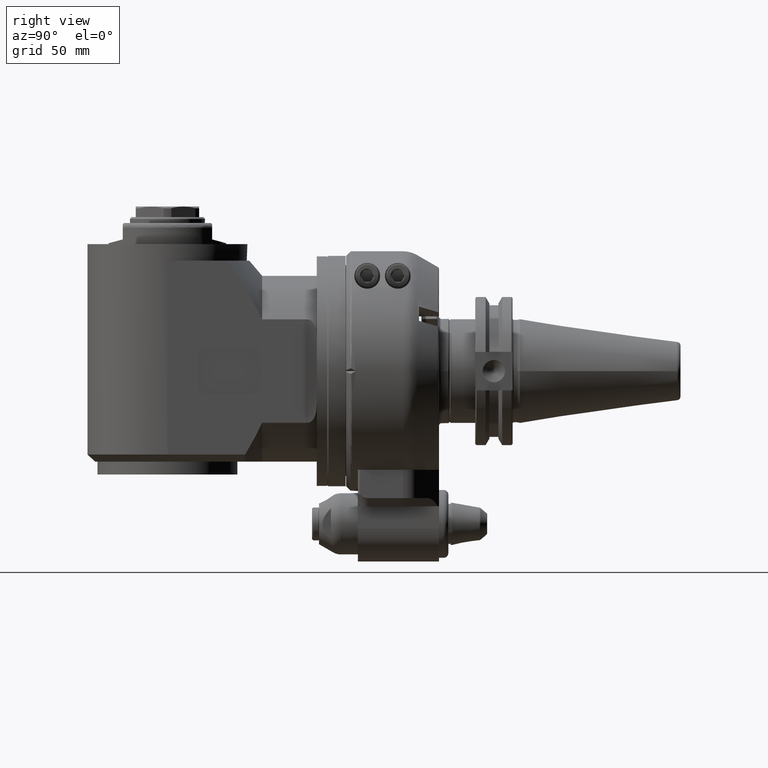
[diagram: clean part render]
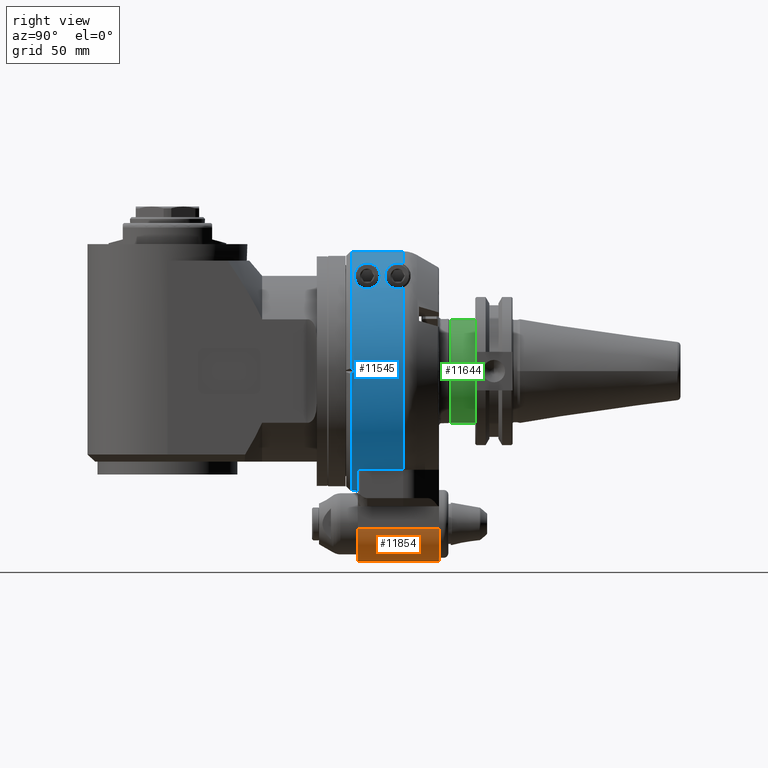
[diagram: same view with three faces highlighted in distinct colors, each labeled with its STEP entity id]
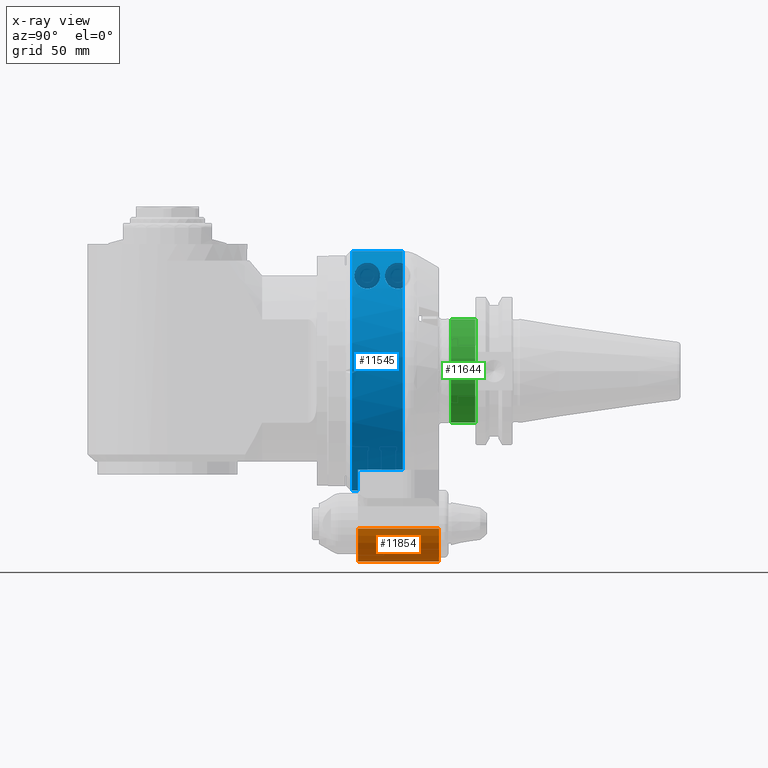
[diagram: x-ray of the same camera — body ghosted, the three highlighted faces saturated]
A machine part, right view with three faces highlighted in distinct colors.
The next image is the same camera in x-ray (body ghosted, the three faces saturated) — at least one of them is partly hidden behind the body in this view.
Their STEP definitions:

[orange] entity #11854 — the highlighted cylindrical surface (edge-blend (fillet) strip) has radius 14 mm, axis along (-0, 1, -0).
#1063=LINE('',#20450,#1837);
#1064=LINE('',#20460,#1838);
#1837=VECTOR('',#15936,34.5);
#1838=VECTOR('',#15947,34.5);
#2228=CYLINDRICAL_SURFACE('',#13104,14.);
#2882=FACE_OUTER_BOUND('',#3693,.T.);
#3693=EDGE_LOOP('',(#9771,#9772,#9773,#9774));
#4443=CIRCLE('',#13049,14.);
#4451=CIRCLE('',#13069,14.);
#5435=VERTEX_POINT('',#20235);
#5436=VERTEX_POINT('',#20237);
#5462=VERTEX_POINT('',#20337);
#5463=VERTEX_POINT('',#20339);
#6906=EDGE_CURVE('',#5435,#5436,#4443,.T.);
#6946=EDGE_CURVE('',#5462,#5463,#4451,.T.);
#6993=EDGE_CURVE('',#5462,#5436,#1063,.T.);
#6997=EDGE_CURVE('',#5435,#5463,#1064,.T.);
#9771=ORIENTED_EDGE('',*,*,#6997,.T.);
#9772=ORIENTED_EDGE('',*,*,#6946,.F.);
#9773=ORIENTED_EDGE('',*,*,#6993,.T.);
#9774=ORIENTED_EDGE('',*,*,#6906,.F.);
#11854=ADVANCED_FACE('',(#2882),#2228,.T.);
#13049=AXIS2_PLACEMENT_3D('',#20238,#15780,#15781);
#13069=AXIS2_PLACEMENT_3D('',#20340,#15847,#15848);
#13104=AXIS2_PLACEMENT_3D('',#20459,#15945,#15946);
#15780=DIRECTION('center_axis',(0.,-1.,0.));
#15781=DIRECTION('ref_axis',(0.,0.,-1.));
#15847=DIRECTION('center_axis',(0.,1.,0.));
#15848=DIRECTION('ref_axis',(1.,0.,0.));
#15936=DIRECTION('',(0.,-1.,0.));
#15945=DIRECTION('center_axis',(0.,1.,0.));
#15946=DIRECTION('ref_axis',(0.,0.,1.));
#15947=DIRECTION('',(0.,1.,0.));
#20235=CARTESIAN_POINT('',(1.,5.,-81.));
#20237=CARTESIAN_POINT('',(15.,5.,-67.));
#20238=CARTESIAN_POINT('Origin',(1.,5.,-67.));
#20337=CARTESIAN_POINT('',(15.,39.5,-67.));
#20339=CARTESIAN_POINT('',(1.,39.5,-81.));
#20340=CARTESIAN_POINT('Origin',(1.,39.5,-67.));
#20450=CARTESIAN_POINT('',(15.,39.5,-67.));
#20459=CARTESIAN_POINT('Origin',(1.,31.,-67.));
#20460=CARTESIAN_POINT('',(1.,5.,-81.));

[blue] entity #11545 — the highlighted cylindrical surface (partial cylindrical patch) has radius 51 mm, axis along (0, -1, 0).
#162=ELLIPSE('',#12497,144.249783362042,51.);
#163=ELLIPSE('',#12498,144.249783362042,51.);
#199=B_SPLINE_CURVE_WITH_KNOTS('',3,(#18393,#18394,#18395,#18396,#18397,
#18398),.UNSPECIFIED.,.F.,.F.,(4,2,4),(-0.220144328873587,-0.201175489980687,
0.),.UNSPECIFIED.);
#200=B_SPLINE_CURVE_WITH_KNOTS('',3,(#18399,#18400,#18401,#18402,#18403,
#18404,#18405,#18406,#18407,#18408,#18409,#18410,#18411,#18412,#18413,#18414,
#18415,#18416,#18417,#18418,#18419,#18420,#18421,#18422,#18423,#18424),
 .UNSPECIFIED.,.F.,.F.,(4,2,2,2,2,2,2,2,2,2,2,2,4),(0.,0.201175489980687,
0.402350979961374,0.726790310303929,1.05122964064648,1.44743687444551,1.84364410824453,
2.06341028648597,2.1732933756067,2.28317646472742,2.39305955384814,2.50294264296886,
2.52975105249028),.UNSPECIFIED.);
#201=B_SPLINE_CURVE_WITH_KNOTS('',3,(#18428,#18429,#18430,#18431,#18432,
#18433,#18434,#18435,#18436,#18437,#18438,#18439,#18440,#18441,#18442,#18443,
#18444,#18445,#18446,#18447,#18448,#18449,#18450),.UNSPECIFIED.,.F.,.F.,
(4,2,2,2,2,3,2,2,2,2,4),(-1.23194682408093,-0.835739590281912,-0.439532356482891,
-0.219766178241446,-0.109883089120723,0.,0.0949450193758139,0.189890038751628,
0.520032016318137,0.865269466584616,1.2105069168511),.UNSPECIFIED.);
#202=B_SPLINE_CURVE_WITH_KNOTS('',3,(#18451,#18452,#18453,#18454,#18455,
#18456,#18457,#18458,#18459,#18460,#18461,#18462,#18463,#18464,#18465,#18466,
#18467,#18468),.UNSPECIFIED.,.F.,.F.,(4,2,2,2,2,2,2,2,4),(1.2105069168511,
1.53494624719365,1.8593855775362,2.06056106751689,2.26173655749758,2.46291204747827,
2.66408753745895,2.98852686780151,3.31296619814406),.UNSPECIFIED.);
#675=LINE('',#18162,#1449);
#677=LINE('',#18166,#1451);
#694=LINE('',#18389,#1468);
#695=LINE('',#18425,#1469);
#1449=VECTOR('',#14240,19.16025403784);
#1451=VECTOR('',#14242,19.16025403784);
#1468=VECTOR('',#14367,21.74606325158);
#1469=VECTOR('',#14372,21.74606856517);
#2150=CYLINDRICAL_SURFACE('',#12495,51.);
#2341=FACE_BOUND('',#3334,.T.);
#2573=FACE_OUTER_BOUND('',#3333,.T.);
#3333=EDGE_LOOP('',(#8235,#8236,#8237,#8238,#8239,#8240,#8241,#8242,#8243,
#8244,#8245,#8246,#8247,#8248));
#3334=EDGE_LOOP('',(#8249,#8250));
#4181=CIRCLE('',#12493,51.);
#4182=CIRCLE('',#12494,51.);
#4183=CIRCLE('',#12496,51.);
#4184=CIRCLE('',#12499,51.);
#4185=CIRCLE('',#12500,51.);
#4186=CIRCLE('',#12501,51.);
#4938=VERTEX_POINT('',#18148);
#4939=VERTEX_POINT('',#18161);
#4940=VERTEX_POINT('',#18163);
#4941=VERTEX_POINT('',#18165);
#4984=VERTEX_POINT('',#18345);
#4985=VERTEX_POINT('',#18354);
#4986=VERTEX_POINT('',#18356);
#4987=VERTEX_POINT('',#18379);
#4988=VERTEX_POINT('',#18380);
#4989=VERTEX_POINT('',#18382);
#4990=VERTEX_POINT('',#18384);
#4991=VERTEX_POINT('',#18386);
#4992=VERTEX_POINT('',#18388);
#4993=VERTEX_POINT('',#18392);
#4994=VERTEX_POINT('',#18426);
#4995=VERTEX_POINT('',#18427);
#6168=EDGE_CURVE('',#4939,#4938,#675,.T.);
#6170=EDGE_CURVE('',#4941,#4940,#677,.T.);
#6229=EDGE_CURVE('',#4984,#4985,#4181,.T.);
#6231=EDGE_CURVE('',#4986,#4938,#4182,.T.);
#6232=EDGE_CURVE('',#4987,#4988,#4183,.T.);
#6233=EDGE_CURVE('',#4989,#4987,#162,.T.);
#6234=EDGE_CURVE('',#4990,#4989,#163,.T.);
#6235=EDGE_CURVE('',#4991,#4990,#4184,.T.);
#6236=EDGE_CURVE('',#4991,#4992,#694,.T.);
#6237=EDGE_CURVE('',#4941,#4992,#4185,.T.);
#6238=EDGE_CURVE('',#4939,#4940,#4186,.T.);
#6239=EDGE_CURVE('',#4986,#4993,#199,.T.);
#6240=EDGE_CURVE('',#4993,#4985,#200,.T.);
#6241=EDGE_CURVE('',#4984,#4988,#695,.T.);
#6242=EDGE_CURVE('',#4994,#4995,#201,.T.);
#6243=EDGE_CURVE('',#4995,#4994,#202,.T.);
#8235=ORIENTED_EDGE('',*,*,#6232,.F.);
#8236=ORIENTED_EDGE('',*,*,#6233,.F.);
#8237=ORIENTED_EDGE('',*,*,#6234,.F.);
#8238=ORIENTED_EDGE('',*,*,#6235,.F.);
#8239=ORIENTED_EDGE('',*,*,#6236,.T.);
#8240=ORIENTED_EDGE('',*,*,#6237,.F.);
#8241=ORIENTED_EDGE('',*,*,#6170,.T.);
#8242=ORIENTED_EDGE('',*,*,#6238,.F.);
#8243=ORIENTED_EDGE('',*,*,#6168,.T.);
#8244=ORIENTED_EDGE('',*,*,#6231,.F.);
#8245=ORIENTED_EDGE('',*,*,#6239,.T.);
#8246=ORIENTED_EDGE('',*,*,#6240,.T.);
#8247=ORIENTED_EDGE('',*,*,#6229,.F.);
#8248=ORIENTED_EDGE('',*,*,#6241,.T.);
#8249=ORIENTED_EDGE('',*,*,#6242,.T.);
#8250=ORIENTED_EDGE('',*,*,#6243,.T.);
#11545=ADVANCED_FACE('',(#2573,#2341),#2150,.T.);
#12493=AXIS2_PLACEMENT_3D('',#18355,#14353,#14354);
#12494=AXIS2_PLACEMENT_3D('',#18377,#14355,#14356);
#12495=AXIS2_PLACEMENT_3D('',#18378,#14357,#14358);
#12496=AXIS2_PLACEMENT_3D('',#18381,#14359,#14360);
#12497=AXIS2_PLACEMENT_3D('',#18383,#14361,#14362);
#12498=AXIS2_PLACEMENT_3D('',#18385,#14363,#14364);
#12499=AXIS2_PLACEMENT_3D('',#18387,#14365,#14366);
#12500=AXIS2_PLACEMENT_3D('',#18390,#14368,#14369);
#12501=AXIS2_PLACEMENT_3D('',#18391,#14370,#14371);
#14240=DIRECTION('',(0.,1.,0.));
#14242=DIRECTION('',(0.,-1.,0.));
#14353=DIRECTION('center_axis',(0.,1.,0.));
#14354=DIRECTION('ref_axis',(0.0294117647058804,0.,0.999567380468614));
#14355=DIRECTION('center_axis',(0.,1.,0.));
#14356=DIRECTION('ref_axis',(0.719066469693323,0.,0.694941301235422));
#14357=DIRECTION('center_axis',(0.,-1.,0.));
#14358=DIRECTION('ref_axis',(1.4663926773559E-10,0.,-1.));
#14359=DIRECTION('center_axis',(0.,-1.,0.));
#14360=DIRECTION('ref_axis',(0.999826388474475,0.,0.0186331132687895));
#14361=DIRECTION('center_axis',(0.612372435695813,-0.353553390593307,-0.707106781186515));
#14362=DIRECTION('ref_axis',(-0.23145502494317,-0.935414346693473,0.267261241912441));
#14363=DIRECTION('center_axis',(0.612372435695813,-0.353553390593307,0.707106781186515));
#14364=DIRECTION('ref_axis',(0.23145502494317,0.935414346693473,0.267261241912441));
#14365=DIRECTION('center_axis',(0.,-1.,0.));
#14366=DIRECTION('ref_axis',(0.,0.,-1.));
#14367=DIRECTION('',(4.970251645951E-10,1.,1.462479987387E-11));
#14368=DIRECTION('center_axis',(0.,1.,0.));
#14369=DIRECTION('ref_axis',(-0.567273574176089,0.,-0.823529411764684));
#14370=DIRECTION('center_axis',(0.,1.,0.));
#14371=DIRECTION('ref_axis',(0.,0.,-1.));
#14372=DIRECTION('',(1.273469652131E-9,-1.,-3.747115976057E-11));
#18148=CARTESIAN_POINT('',(28.93095228298,24.16025403784,-42.));
#18161=CARTESIAN_POINT('',(28.93095228298,5.,-42.));
#18162=CARTESIAN_POINT('',(28.93095228298,5.,-42.));
#18163=CARTESIAN_POINT('',(-28.93095228298,5.,-42.));
#18165=CARTESIAN_POINT('',(-28.93095228298,24.16025403784,-42.));
#18166=CARTESIAN_POINT('',(-28.93095228298,24.16025403784,-42.));
#18345=CARTESIAN_POINT('',(1.49999997307727,24.16025403784,50.9779364046907));
#18354=CARTESIAN_POINT('',(22.92311419183,24.16025403784,45.55799420242));
#18355=CARTESIAN_POINT('Origin',(0.,24.16025403784,0.));
#18356=CARTESIAN_POINT('',(36.67238995436,24.16025403784,35.44200636301));
#18377=CARTESIAN_POINT('Origin',(0.,24.16025403784,0.));
#18378=CARTESIAN_POINT('Origin',(0.,31.,0.));
#18379=CARTESIAN_POINT('',(50.9911458122,2.41421356236,0.9502887767138));
#18380=CARTESIAN_POINT('',(1.49999998703747,2.41421356028963,50.9779364042799));
#18381=CARTESIAN_POINT('Origin',(0.,2.41421356237,0.));
#18382=CARTESIAN_POINT('',(51.,4.33012701892,0.));
#18383=CARTESIAN_POINT('Origin',(0.,-84.0044641670873,0.));
#18384=CARTESIAN_POINT('',(50.9911458122,2.41421356237,-0.9502887767115));
#18385=CARTESIAN_POINT('Origin',(0.,-84.0044641670895,0.));
#18386=CARTESIAN_POINT('',(-1.49999998610159,2.41421356013992,50.9779364043068));
#18387=CARTESIAN_POINT('Origin',(0.,2.41421356237,0.));
#18388=CARTESIAN_POINT('',(-1.49999998045834,24.1602540409196,50.9779364044728));
#18389=CARTESIAN_POINT('',(-1.49999997128,2.41420614677,50.97793640474));
#18390=CARTESIAN_POINT('Origin',(0.,24.16025403784,0.));
#18391=CARTESIAN_POINT('Origin',(0.,5.,0.));
#18392=CARTESIAN_POINT('',(37.094473715245,22.,35.0000002827));
#18393=CARTESIAN_POINT('Ctrl Pts',(36.6723899543831,24.1602540378614,35.4420063629821));
#18394=CARTESIAN_POINT('Ctrl Pts',(36.6960098703128,24.1030307589119,35.4175664721138));
#18395=CARTESIAN_POINT('Ctrl Pts',(36.7187524665262,24.0451285760375,35.3939854762316));
#18396=CARTESIAN_POINT('Ctrl Pts',(36.9720249281091,23.365962882206,35.1309085087689));
#18397=CARTESIAN_POINT('Ctrl Pts',(37.094473715245,22.6705849666023,35.0000002827));
#18398=CARTESIAN_POINT('Ctrl Pts',(37.094473715245,22.,35.0000002827));
#18399=CARTESIAN_POINT('Ctrl Pts',(37.094473715245,22.,35.0000002827));
#18400=CARTESIAN_POINT('Ctrl Pts',(37.094473715245,21.3294150333977,35.0000002827));
#18401=CARTESIAN_POINT('Ctrl Pts',(36.9720249281091,20.634037117794,35.1309085087689));
#18402=CARTESIAN_POINT('Ctrl Pts',(36.509126684777,19.3927469884163,35.611726144206));
#18403=CARTESIAN_POINT('Ctrl Pts',(36.1687494919773,18.8460087579151,35.9595700839234));
#18404=CARTESIAN_POINT('Ctrl Pts',(35.2033968586434,17.735791859391,36.9109847334653));
#18405=CARTESIAN_POINT('Ctrl Pts',(34.4409934800641,17.2408985110096,37.6305186458188));
#18406=CARTESIAN_POINT('Ctrl Pts',(32.7670730175023,16.6228361137413,39.0967633186736));
#18407=CARTESIAN_POINT('Ctrl Pts',(31.8547771083538,16.5,39.8427250661917));
#18408=CARTESIAN_POINT('Ctrl Pts',(29.9471832487812,16.5,41.3026686740521));
#18409=CARTESIAN_POINT('Ctrl Pts',(28.778013547493,16.6813594560049,42.1275628033903));
#18410=CARTESIAN_POINT('Ctrl Pts',(26.456979520871,17.3971650946717,43.6226298537565));
#18411=CARTESIAN_POINT('Ctrl Pts',(25.3037695427295,17.923954492565,44.2943690865695));
#18412=CARTESIAN_POINT('Ctrl Pts',(23.7624895598246,18.9924338611569,45.1302050030023));
#18413=CARTESIAN_POINT('Ctrl Pts',(23.1928172782629,19.474810450432,45.4238805293447));
#18414=CARTESIAN_POINT('Ctrl Pts',(22.5411184273514,20.3289480905375,45.7488459255632));
#18415=CARTESIAN_POINT('Ctrl Pts',(22.3578474169696,20.6350884897769,45.8382767855729));
#18416=CARTESIAN_POINT('Ctrl Pts',(22.0986788135919,21.2875037271628,45.9637780827712));
#18417=CARTESIAN_POINT('Ctrl Pts',(22.0227149550549,21.6337230362643,46.0000002827));
#18418=CARTESIAN_POINT('Ctrl Pts',(22.0227149550549,22.3662769637357,46.0000002827));
#18419=CARTESIAN_POINT('Ctrl Pts',(22.0986788135919,22.7124962728372,45.9637780827712));
#18420=CARTESIAN_POINT('Ctrl Pts',(22.3578474169696,23.3649115102231,45.8382767855729));
#18421=CARTESIAN_POINT('Ctrl Pts',(22.5411184273514,23.6710519094625,45.7488459255632));
#18422=CARTESIAN_POINT('Ctrl Pts',(22.8113501597235,24.0252263780027,45.6140966286168));
#18423=CARTESIAN_POINT('Ctrl Pts',(22.866366168842,24.0933991389679,45.5865477292858));
#18424=CARTESIAN_POINT('Ctrl Pts',(22.9231141918306,24.1602540378421,45.5579942024262));
#18425=CARTESIAN_POINT('',(1.499999945521,24.16027520978,50.9779364055));
#18426=CARTESIAN_POINT('',(30.99596711028,3.5,40.5000002827));
#18427=CARTESIAN_POINT('',(30.9959671102758,14.5,40.5000002827));
#18428=CARTESIAN_POINT('Ctrl Pts',(30.9959671102758,3.5,40.5000002827));
#18429=CARTESIAN_POINT('Ctrl Pts',(29.9471832487812,3.5,41.3026686740522));
#18430=CARTESIAN_POINT('Ctrl Pts',(28.778013547493,3.68135945600489,42.1275628033903));
#18431=CARTESIAN_POINT('Ctrl Pts',(26.456979520871,4.39716509467172,43.6226298537565));
#18432=CARTESIAN_POINT('Ctrl Pts',(25.3037695427295,4.92395449256504,44.2943690865695));
#18433=CARTESIAN_POINT('Ctrl Pts',(23.7624895598246,5.99243386115686,45.1302050030023));
#18434=CARTESIAN_POINT('Ctrl Pts',(23.1928172782629,6.47481045043199,45.4238805293447));
#18435=CARTESIAN_POINT('Ctrl Pts',(22.5411184273514,7.32894809053752,45.7488459255632));
#18436=CARTESIAN_POINT('Ctrl Pts',(22.3578474169696,7.63508848977688,45.8382767855729));
#18437=CARTESIAN_POINT('Ctrl Pts',(22.0986788135919,8.28750372716278,45.9637780827712));
#18438=CARTESIAN_POINT('Ctrl Pts',(22.0227149550549,8.63372303626426,46.0000002827));
#18439=CARTESIAN_POINT('Ctrl Pts',(22.0227149550549,9.,46.0000002827));
#18440=CARTESIAN_POINT('Ctrl Pts',(22.0227149550549,9.31648339791938,46.0000002827));
#18441=CARTESIAN_POINT('Ctrl Pts',(22.0845156868871,9.6517064771444,45.9705414133334));
#18442=CARTESIAN_POINT('Ctrl Pts',(22.3158805898878,10.2791236415987,45.8586740383155));
#18443=CARTESIAN_POINT('Ctrl Pts',(22.483313327636,10.5722426936705,45.7770585076701));
#18444=CARTESIAN_POINT('Ctrl Pts',(23.2699641340394,11.6843353101904,45.3869345691662));
#18445=CARTESIAN_POINT('Ctrl Pts',(24.2526245503324,12.4029598465647,44.8752150291874));
#18446=CARTESIAN_POINT('Ctrl Pts',(26.0105214218574,13.3974425277095,43.8807323480425));
#18447=CARTESIAN_POINT('Ctrl Pts',(27.0277734960808,13.8085612622241,43.2664368855585));
#18448=CARTESIAN_POINT('Ctrl Pts',(29.06345429342,14.3611168342614,41.9261341817965));
#18449=CARTESIAN_POINT('Ctrl Pts',(30.0821032649561,14.5,41.1994099986278));
#18450=CARTESIAN_POINT('Ctrl Pts',(30.9959671102758,14.5,40.5000002827));
#18451=CARTESIAN_POINT('Ctrl Pts',(30.9959671102758,14.5,40.5000002827));
#18452=CARTESIAN_POINT('Ctrl Pts',(31.8547771083537,14.5,39.8427250661917));
#18453=CARTESIAN_POINT('Ctrl Pts',(32.7670730175023,14.3771638862587,39.0967633186736));
#18454=CARTESIAN_POINT('Ctrl Pts',(34.4409934800641,13.7591014889904,37.6305186458188));
#18455=CARTESIAN_POINT('Ctrl Pts',(35.2033968586434,13.264208140609,36.9109847334653));
#18456=CARTESIAN_POINT('Ctrl Pts',(36.1687494919773,12.1539912420849,35.9595700839234));
#18457=CARTESIAN_POINT('Ctrl Pts',(36.509126684777,11.6072530115837,35.611726144206));
#18458=CARTESIAN_POINT('Ctrl Pts',(36.9720249281091,10.365962882206,35.1309085087689));
#18459=CARTESIAN_POINT('Ctrl Pts',(37.094473715245,9.67058496660229,35.0000002827));
#18460=CARTESIAN_POINT('Ctrl Pts',(37.094473715245,8.32941503339771,35.0000002827));
#18461=CARTESIAN_POINT('Ctrl Pts',(36.9720249281091,7.63403711779401,35.1309085087689));
#18462=CARTESIAN_POINT('Ctrl Pts',(36.509126684777,6.3927469884163,35.611726144206));
#18463=CARTESIAN_POINT('Ctrl Pts',(36.1687494919773,5.84600875791506,35.9595700839234));
#18464=CARTESIAN_POINT('Ctrl Pts',(35.2033968586434,4.73579185939096,36.9109847334653));
#18465=CARTESIAN_POINT('Ctrl Pts',(34.4409934800641,4.2408985110096,37.6305186458188));
#18466=CARTESIAN_POINT('Ctrl Pts',(32.7670730175023,3.6228361137413,39.0967633186736));
#18467=CARTESIAN_POINT('Ctrl Pts',(31.8547771083537,3.5,39.8427250661917));
#18468=CARTESIAN_POINT('Ctrl Pts',(30.9959671102758,3.5,40.5000002827));

[green] entity #11644 — the highlighted cylindrical surface (bore or boss wall) has radius 22.225 mm, axis along (0, -1, 0).
#789=LINE('',#19001,#1563);
#1563=VECTOR('',#14842,22.225);
#2178=CYLINDRICAL_SURFACE('',#12689,22.225);
#2672=FACE_OUTER_BOUND('',#3447,.T.);
#3447=EDGE_LOOP('',(#8712,#8713,#8714,#8715,#8716));
#4267=CIRCLE('',#12687,22.225);
#4268=CIRCLE('',#12688,22.225);
#4269=CIRCLE('',#12690,22.225);
#5124=VERTEX_POINT('',#18994);
#5125=VERTEX_POINT('',#18995);
#5126=VERTEX_POINT('',#19000);
#6447=EDGE_CURVE('',#5124,#5125,#4267,.T.);
#6449=EDGE_CURVE('',#5125,#5124,#4268,.T.);
#6450=EDGE_CURVE('',#5124,#5126,#789,.T.);
#6451=EDGE_CURVE('',#5126,#5126,#4269,.T.);
#8712=ORIENTED_EDGE('',*,*,#6447,.F.);
#8713=ORIENTED_EDGE('',*,*,#6450,.T.);
#8714=ORIENTED_EDGE('',*,*,#6451,.F.);
#8715=ORIENTED_EDGE('',*,*,#6450,.F.);
#8716=ORIENTED_EDGE('',*,*,#6449,.F.);
#11644=ADVANCED_FACE('',(#2672),#2178,.T.);
#12687=AXIS2_PLACEMENT_3D('',#18996,#14835,#14836);
#12688=AXIS2_PLACEMENT_3D('',#18998,#14838,#14839);
#12689=AXIS2_PLACEMENT_3D('',#18999,#14840,#14841);
#12690=AXIS2_PLACEMENT_3D('',#19002,#14843,#14844);
#14835=DIRECTION('center_axis',(0.,-1.,0.));
#14836=DIRECTION('ref_axis',(-1.,0.,0.));
#14838=DIRECTION('center_axis',(0.,-1.,0.));
#14839=DIRECTION('ref_axis',(-1.,0.,0.));
#14840=DIRECTION('center_axis',(0.,-1.,0.));
#14841=DIRECTION('ref_axis',(1.,0.,0.));
#14842=DIRECTION('',(0.,1.,0.));
#14843=DIRECTION('center_axis',(0.,1.,0.));
#14844=DIRECTION('ref_axis',(1.,0.,0.));
#18994=CARTESIAN_POINT('',(-22.225,44.5,0.));
#18995=CARTESIAN_POINT('',(22.225,44.5,-2.72177751110499E-15));
#18996=CARTESIAN_POINT('Origin',(0.,44.5,0.));
#18998=CARTESIAN_POINT('Origin',(0.,44.5,0.));
#18999=CARTESIAN_POINT('Origin',(0.,49.475,0.));
#19000=CARTESIAN_POINT('',(-22.225,54.95,-2.72177751110499E-15));
#19001=CARTESIAN_POINT('',(-22.225,49.475,-2.72177751110499E-15));
#19002=CARTESIAN_POINT('Origin',(0.,54.95,0.));